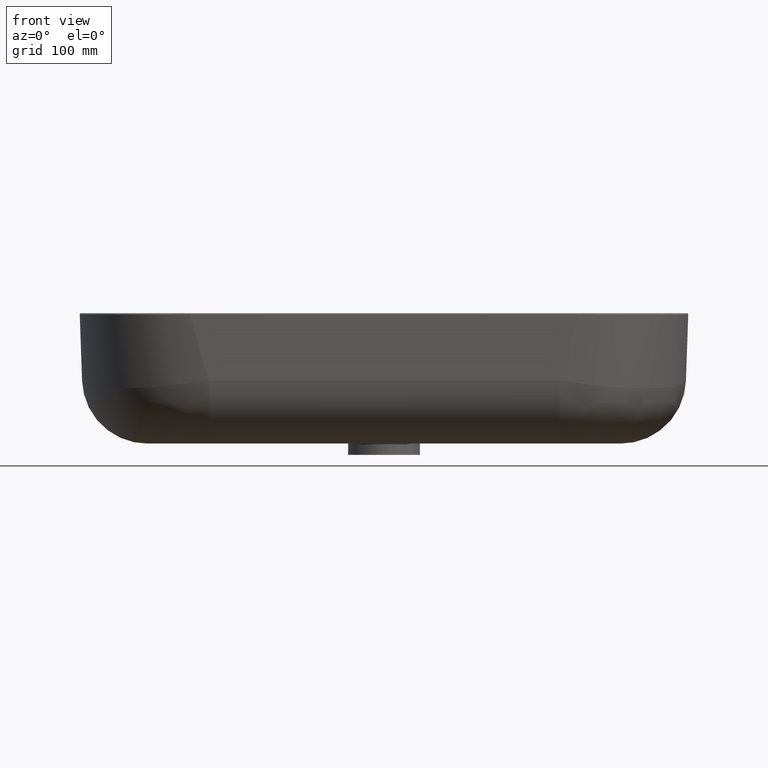
[diagram: clean part render]
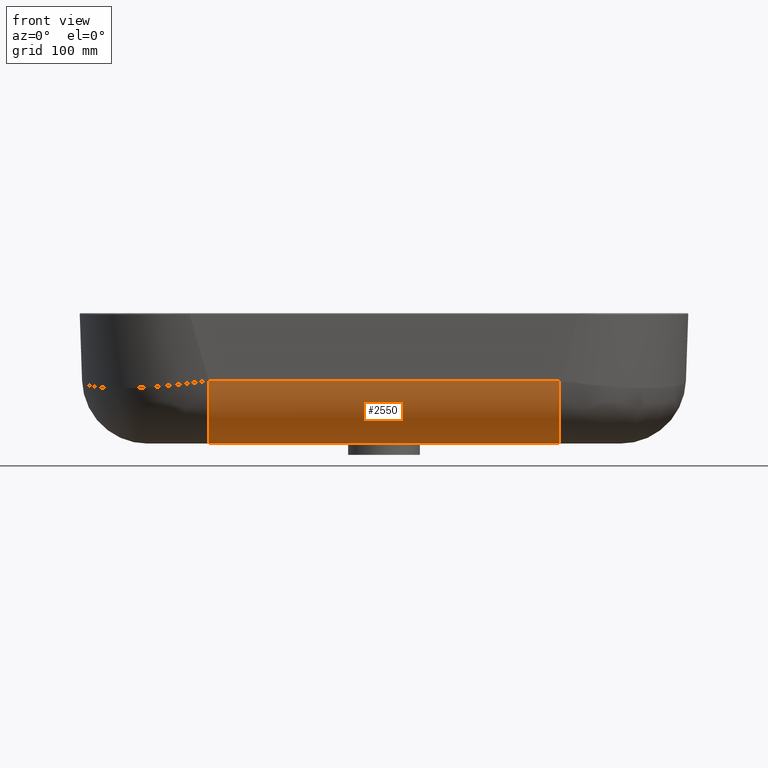
[diagram: same view with one face highlighted and labeled with its STEP entity id]
A machine part, front view. The second image highlights one B-rep face of the part: STEP entity #2550.
In plain terms, the highlighted cylindrical surface (partial cylindrical patch) has radius 60 mm, axis along (1, 0, 0).
Its self-contained STEP definition (entity closure, byte-faithful):
#597 = CARTESIAN_POINT ( 'NONE',  ( 118.6351737575999863, 2.168369206290659879, 57.90603019778699689 ) ) ;
#665 =( BOUNDED_CURVE ( )  B_SPLINE_CURVE ( 2, ( #2811, #4075, #678 ),
 .UNSPECIFIED., .F., .T. ) 
 B_SPLINE_CURVE_WITH_KNOTS ( ( 3, 3 ),
 ( 0.0000000000000000000, 92.15338450530069281 ),
 .UNSPECIFIED. ) 
 CURVE ( )  GEOMETRIC_REPRESENTATION_ITEM ( )  RATIONAL_B_SPLINE_CURVE ( ( 1.000000000000000000, 0.7193398003388590256, 1.000000000000000000 ) ) 
 REPRESENTATION_ITEM ( '' )  );
#678 = CARTESIAN_POINT ( 'NONE',  ( 118.6351737575999863, 2.168369206290659879, 57.90603019778699689 ) ) ;
#811 = CARTESIAN_POINT ( 'NONE',  ( 118.6351737377789988, 62.13181882743640472, 0.0000000000000000000 ) ) ;
#959 = VERTEX_POINT ( 'NONE', #597 ) ;
#1175 = CARTESIAN_POINT ( 'NONE',  ( 441.3648262423999995, 2.168369206290599926, 57.90603019778699689 ) ) ;
#1192 = DIRECTION ( 'NONE',  ( 1.000000000000000000, 8.697582287075910350E-15, 8.024960731184739719E-15 ) ) ;
#1510 = EDGE_LOOP ( 'NONE', ( #1853, #4536, #2767, #2157 ) ) ;
#1591 = CARTESIAN_POINT ( 'NONE',  ( 118.6351737575999863, 2.168369206290659879, 57.90603019778699689 ) ) ;
#1853 = ORIENTED_EDGE ( 'NONE', *, *, #5347, .F. ) ;
#2000 = CARTESIAN_POINT ( 'NONE',  ( 441.3648262423999995, 2.168369206290599926, 57.90603019778699689 ) ) ;
#2157 = ORIENTED_EDGE ( 'NONE', *, *, #2861, .F. ) ;
#2196 = AXIS2_PLACEMENT_3D ( 'NONE', #2494, #1192, #2437 ) ;
#2410 = EDGE_CURVE ( 'NONE', #3014, #4397, #2972, .T. ) ;
#2437 = DIRECTION ( 'NONE',  ( -8.326672684693822159E-15, 1.000000000000000000, 0.0000000000000000000 ) ) ;
#2494 = CARTESIAN_POINT ( 'NONE',  ( 280.0000000000000000, 62.13181882739829831, 59.99999999996290256 ) ) ;
#2549 = VERTEX_POINT ( 'NONE', #2990 ) ;
#2550 = ADVANCED_FACE ( 'NONE', ( #3709 ), #5029, .T. ) ;
#2568 = CARTESIAN_POINT ( 'NONE',  ( 118.6351737377789988, 62.13181882743640472, 0.0000000000000000000 ) ) ;
#2641 = B_SPLINE_CURVE_WITH_KNOTS ( 'NONE', 1,
 ( #1591, #1175 ),
 .UNSPECIFIED., .F., .F.,
 ( 2, 2 ),
 ( -16.61683928182199921, 306.1128132418070322 ),
 .UNSPECIFIED. ) ;
#2746 = CARTESIAN_POINT ( 'NONE',  ( 441.3648262622219818, 62.13181882743640472, 0.0000000000000000000 ) ) ;
#2767 = ORIENTED_EDGE ( 'NONE', *, *, #2829, .F. ) ;
#2811 = CARTESIAN_POINT ( 'NONE',  ( 118.6351737377789988, 62.13181882743640472, 0.0000000000000000000 ) ) ;
#2829 = EDGE_CURVE ( 'NONE', #2549, #4397, #3972, .T. ) ;
#2861 = EDGE_CURVE ( 'NONE', #959, #2549, #2641, .T. ) ;
#2972 = B_SPLINE_CURVE_WITH_KNOTS ( 'NONE', 1,
 ( #811, #3812 ),
 .UNSPECIFIED., .F., .F.,
 ( 2, 2 ),
 ( -16.61683928186030101, 306.1128132418450036 ),
 .UNSPECIFIED. ) ;
#2990 = CARTESIAN_POINT ( 'NONE',  ( 441.3648262423999995, 2.168369206290599926, 57.90603019778699689 ) ) ;
#3014 = VERTEX_POINT ( 'NONE', #2568 ) ;
#3685 = CARTESIAN_POINT ( 'NONE',  ( 441.3648262519043897, 4.190492339043396797, -3.041108013128976241E-11 ) ) ;
#3709 = FACE_OUTER_BOUND ( 'NONE', #1510, .T. ) ;
#3812 = CARTESIAN_POINT ( 'NONE',  ( 441.3648262622219818, 62.13181882743640472, 0.0000000000000000000 ) ) ;
#3972 =( BOUNDED_CURVE ( )  B_SPLINE_CURVE ( 2, ( #2000, #3685, #5375 ),
 .UNSPECIFIED., .F., .T. ) 
 B_SPLINE_CURVE_WITH_KNOTS ( ( 3, 3 ),
 ( 0.0000000000000000000, 92.15338450530069281 ),
 .UNSPECIFIED. ) 
 CURVE ( )  GEOMETRIC_REPRESENTATION_ITEM ( )  RATIONAL_B_SPLINE_CURVE ( ( 1.000000000000000000, 0.7193398003388600248, 1.000000000000000000 ) ) 
 REPRESENTATION_ITEM ( '' )  );
#4075 = CARTESIAN_POINT ( 'NONE',  ( 118.6351737480969319, 4.190492339043417225, -3.041583594855890139E-11 ) ) ;
#4397 = VERTEX_POINT ( 'NONE', #2746 ) ;
#4536 = ORIENTED_EDGE ( 'NONE', *, *, #2410, .T. ) ;
#5029 = CYLINDRICAL_SURFACE ( 'NONE', #2196, 59.99999999996290967 ) ;
#5347 = EDGE_CURVE ( 'NONE', #3014, #959, #665, .T. ) ;
#5375 = CARTESIAN_POINT ( 'NONE',  ( 441.3648262622219818, 62.13181882743640472, 0.0000000000000000000 ) ) ;